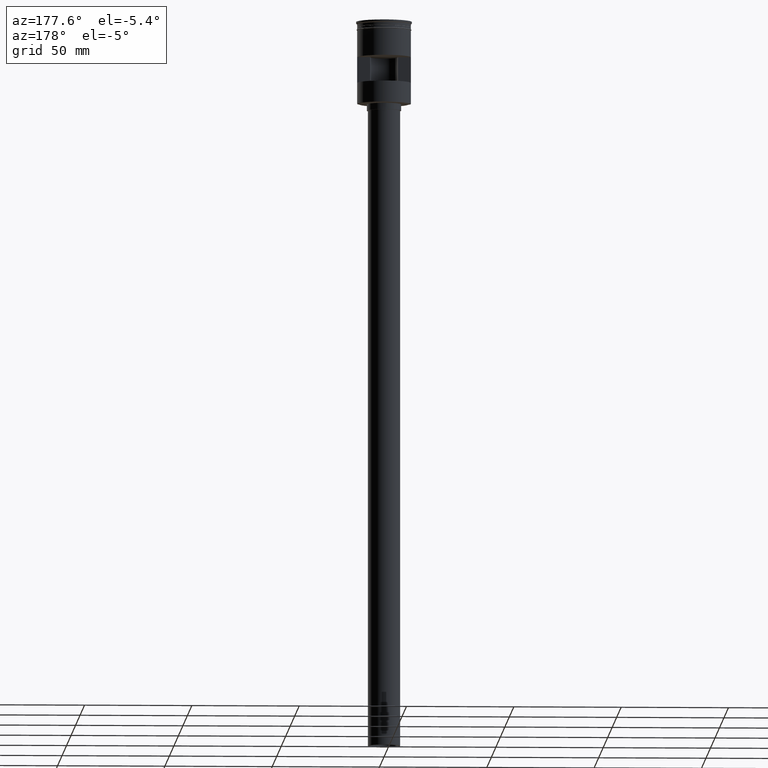
[diagram: clean part render]
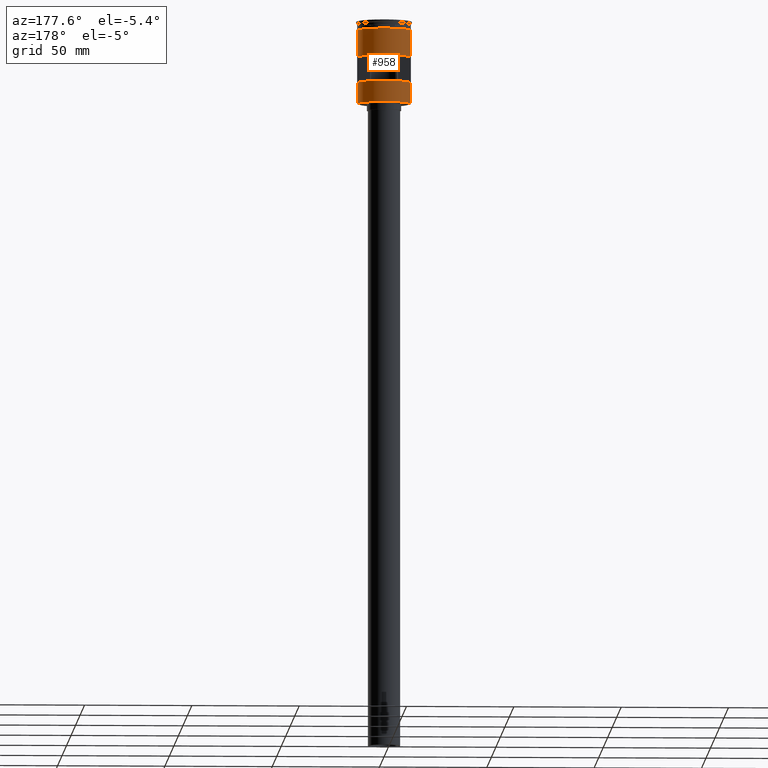
[diagram: same view with one face highlighted and labeled with its STEP entity id]
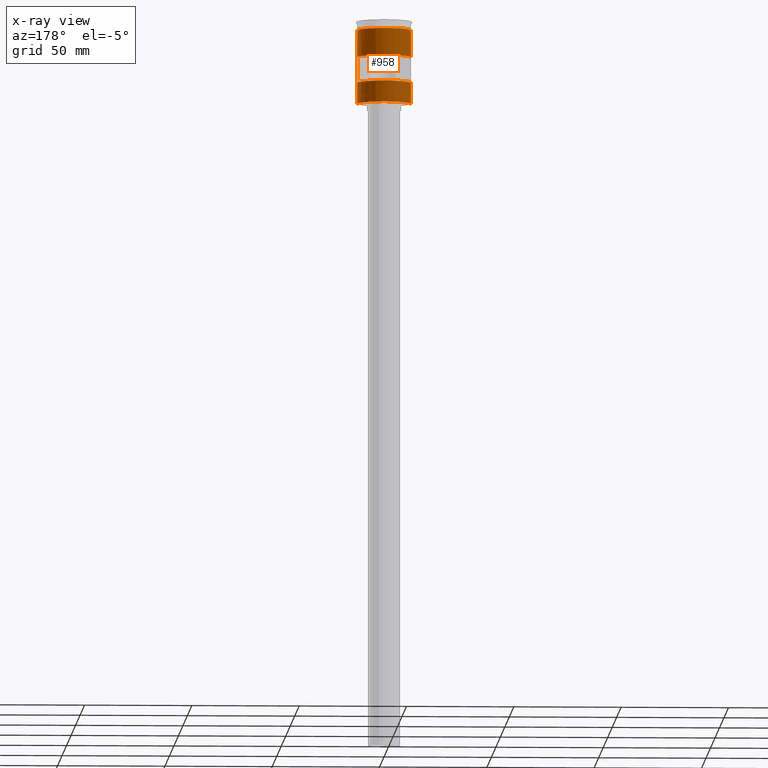
[diagram: x-ray of the same camera — body ghosted, the highlighted face saturated]
A machine part, auxiliary view. The second image highlights one B-rep face of the part: STEP entity #958.
The next image is the same camera in x-ray: the body ghosted, the highlighted face saturated — about 0% of this face is hidden behind the body in this view.
In plain terms, the highlighted cylindrical surface (edge-blend (fillet) strip) has radius 12.5 mm, axis along (-0, -0, 1).
Its self-contained STEP definition (entity closure, byte-faithful):
#5 = CARTESIAN_POINT ( 'NONE',  ( 0.000000000000000000, 0.000000000000000000, -38.30000000000001847 ) ) ;
#10 = VERTEX_POINT ( 'NONE', #1022 ) ;
#49 = DIRECTION ( 'NONE',  ( -0.000000000000000000, -0.000000000000000000, 1.000000000000000000 ) ) ;
#98 = CARTESIAN_POINT ( 'NONE',  ( -12.49999999999999289, 0.000000000000000000, -33.29999999999996874 ) ) ;
#110 = CARTESIAN_POINT ( 'NONE',  ( 12.48559169603106689, 0.6000000000000003109, -28.49999999999999645 ) ) ;
#112 = CARTESIAN_POINT ( 'NONE',  ( -12.48559169603106689, 0.6000000000000003109, -16.50000000000000000 ) ) ;
#115 = CARTESIAN_POINT ( 'NONE',  ( -12.49999999999999289, 0.000000000000000000, -38.30000000000001847 ) ) ;
#125 = AXIS2_PLACEMENT_3D ( 'NONE', #1603, #1222, #1474 ) ;
#128 = ORIENTED_EDGE ( 'NONE', *, *, #1198, .F. ) ;
#133 = EDGE_CURVE ( 'NONE', #253, #618, #222, .T. ) ;
#143 = EDGE_CURVE ( 'NONE', #412, #1572, #1188, .T. ) ;
#173 = FACE_BOUND ( 'NONE', #1487, .T. ) ;
#183 = LINE ( 'NONE', #1394, #655 ) ;
#198 = VERTEX_POINT ( 'NONE', #110 ) ;
#213 = EDGE_CURVE ( 'NONE', #618, #1498, #1232, .T. ) ;
#222 = LINE ( 'NONE', #601, #1031 ) ;
#253 = VERTEX_POINT ( 'NONE', #1069 ) ;
#303 = CIRCLE ( 'NONE', #794, 12.49999999999999645 ) ;
#315 = CARTESIAN_POINT ( 'NONE',  ( 0.000000000000000000, 0.000000000000000000, 0.000000000000000000 ) ) ;
#388 = ORIENTED_EDGE ( 'NONE', *, *, #714, .T. ) ;
#393 = EDGE_CURVE ( 'NONE', #198, #409, #1360, .T. ) ;
#397 = CARTESIAN_POINT ( 'NONE',  ( 12.49999999999999645, 0.000000000000000000, 0.000000000000000000 ) ) ;
#402 = DIRECTION ( 'NONE',  ( -1.000000000000000000, 0.000000000000000000, 0.000000000000000000 ) ) ;
#409 = VERTEX_POINT ( 'NONE', #496 ) ;
#412 = VERTEX_POINT ( 'NONE', #115 ) ;
#460 = CIRCLE ( 'NONE', #1065, 12.49999999999999822 ) ;
#483 = VERTEX_POINT ( 'NONE', #861 ) ;
#496 = CARTESIAN_POINT ( 'NONE',  ( -12.48559169603106689, 0.6000000000000003109, -28.49999999999999645 ) ) ;
#503 = AXIS2_PLACEMENT_3D ( 'NONE', #5, #525, #402 ) ;
#525 = DIRECTION ( 'NONE',  ( 0.000000000000000000, 0.000000000000000000, 1.000000000000000000 ) ) ;
#538 = EDGE_CURVE ( 'NONE', #253, #412, #854, .T. ) ;
#545 = DIRECTION ( 'NONE',  ( -0.000000000000000000, -0.000000000000000000, 1.000000000000000000 ) ) ;
#548 = CARTESIAN_POINT ( 'NONE',  ( -12.48559169603106689, 0.6000000000000003109, 0.000000000000000000 ) ) ;
#555 = DIRECTION ( 'NONE',  ( 1.000000000000000000, 0.000000000000000000, 0.000000000000000000 ) ) ;
#597 = CARTESIAN_POINT ( 'NONE',  ( 0.000000000000000000, 0.000000000000000000, -16.50000000000000000 ) ) ;
#601 = CARTESIAN_POINT ( 'NONE',  ( 12.49999999999999289, 1.530808498934190732E-15, -38.50000000000000000 ) ) ;
#618 = VERTEX_POINT ( 'NONE', #910 ) ;
#622 = DIRECTION ( 'NONE',  ( -0.000000000000000000, 0.000000000000000000, -1.000000000000000000 ) ) ;
#655 = VECTOR ( 'NONE', #1055, 1000.000000000000000 ) ;
#673 = FACE_OUTER_BOUND ( 'NONE', #755, .T. ) ;
#684 = LINE ( 'NONE', #548, #1332 ) ;
#701 = CARTESIAN_POINT ( 'NONE',  ( 0.000000000000000000, 0.000000000000000000, -3.999999999999996447 ) ) ;
#714 = EDGE_CURVE ( 'NONE', #1572, #10, #183, .T. ) ;
#755 = EDGE_LOOP ( 'NONE', ( #928, #388, #128, #1073, #933, #1268 ) ) ;
#769 = VECTOR ( 'NONE', #1561, 1000.000000000000000 ) ;
#790 = ORIENTED_EDGE ( 'NONE', *, *, #1452, .F. ) ;
#794 = AXIS2_PLACEMENT_3D ( 'NONE', #597, #622, #1323 ) ;
#801 = DIRECTION ( 'NONE',  ( -0.000000000000000000, -0.000000000000000000, 1.000000000000000000 ) ) ;
#803 = LINE ( 'NONE', #1040, #1113 ) ;
#823 = CARTESIAN_POINT ( 'NONE',  ( 12.49999999999999822, 0.000000000000000000, -3.999999999999996447 ) ) ;
#854 = CIRCLE ( 'NONE', #503, 12.49999999999999645 ) ;
#857 = VERTEX_POINT ( 'NONE', #112 ) ;
#861 = CARTESIAN_POINT ( 'NONE',  ( 12.48559169603106689, 0.6000000000000003109, -16.50000000000000000 ) ) ;
#876 = ORIENTED_EDGE ( 'NONE', *, *, #1501, .F. ) ;
#910 = CARTESIAN_POINT ( 'NONE',  ( 12.49999999999999645, 1.530808498934191127E-15, -33.29999999999996874 ) ) ;
#928 = ORIENTED_EDGE ( 'NONE', *, *, #143, .T. ) ;
#933 = ORIENTED_EDGE ( 'NONE', *, *, #133, .F. ) ;
#957 = CARTESIAN_POINT ( 'NONE',  ( -12.49999999999999289, 0.000000000000000000, -38.50000000000000000 ) ) ;
#958 = ADVANCED_FACE ( 'NONE', ( #173, #673 ), #1158, .T. ) ;
#966 = EDGE_CURVE ( 'NONE', #483, #198, #803, .T. ) ;
#1022 = CARTESIAN_POINT ( 'NONE',  ( -12.50000000000000000, 1.530808498934191521E-15, -3.999999999999996447 ) ) ;
#1031 = VECTOR ( 'NONE', #1554, 1000.000000000000000 ) ;
#1038 = DIRECTION ( 'NONE',  ( 1.000000000000000000, 0.000000000000000000, 0.000000000000000000 ) ) ;
#1040 = CARTESIAN_POINT ( 'NONE',  ( 12.48559169603106689, 0.6000000000000003109, 0.000000000000000000 ) ) ;
#1055 = DIRECTION ( 'NONE',  ( -0.000000000000000000, -0.000000000000000000, 1.000000000000000000 ) ) ;
#1065 = AXIS2_PLACEMENT_3D ( 'NONE', #701, #801, #1038 ) ;
#1069 = CARTESIAN_POINT ( 'NONE',  ( 12.49999999999999289, 1.530808498934190732E-15, -38.30000000000001847 ) ) ;
#1073 = ORIENTED_EDGE ( 'NONE', *, *, #213, .F. ) ;
#1113 = VECTOR ( 'NONE', #1291, 1000.000000000000000 ) ;
#1158 = CYLINDRICAL_SURFACE ( 'NONE', #1290, 12.49999999999999645 ) ;
#1170 = DIRECTION ( 'NONE',  ( -0.000000000000000000, -0.000000000000000000, 1.000000000000000000 ) ) ;
#1188 = LINE ( 'NONE', #957, #769 ) ;
#1198 = EDGE_CURVE ( 'NONE', #1498, #10, #460, .T. ) ;
#1222 = DIRECTION ( 'NONE',  ( 0.000000000000000000, 0.000000000000000000, 1.000000000000000000 ) ) ;
#1232 = LINE ( 'NONE', #397, #1596 ) ;
#1268 = ORIENTED_EDGE ( 'NONE', *, *, #538, .T. ) ;
#1290 = AXIS2_PLACEMENT_3D ( 'NONE', #315, #49, #555 ) ;
#1291 = DIRECTION ( 'NONE',  ( 0.000000000000000000, 0.000000000000000000, -1.000000000000000000 ) ) ;
#1319 = ORIENTED_EDGE ( 'NONE', *, *, #966, .F. ) ;
#1323 = DIRECTION ( 'NONE',  ( 1.000000000000000000, 0.000000000000000000, 0.000000000000000000 ) ) ;
#1332 = VECTOR ( 'NONE', #1170, 1000.000000000000000 ) ;
#1342 = ORIENTED_EDGE ( 'NONE', *, *, #393, .F. ) ;
#1360 = CIRCLE ( 'NONE', #125, 12.49999999999999645 ) ;
#1394 = CARTESIAN_POINT ( 'NONE',  ( -12.49999999999999645, 1.530808498934191127E-15, 0.000000000000000000 ) ) ;
#1452 = EDGE_CURVE ( 'NONE', #409, #857, #684, .T. ) ;
#1474 = DIRECTION ( 'NONE',  ( -1.000000000000000000, 0.000000000000000000, 0.000000000000000000 ) ) ;
#1487 = EDGE_LOOP ( 'NONE', ( #1319, #876, #790, #1342 ) ) ;
#1498 = VERTEX_POINT ( 'NONE', #823 ) ;
#1501 = EDGE_CURVE ( 'NONE', #857, #483, #303, .T. ) ;
#1554 = DIRECTION ( 'NONE',  ( -0.000000000000000000, -0.000000000000000000, 1.000000000000000000 ) ) ;
#1561 = DIRECTION ( 'NONE',  ( -0.000000000000000000, -0.000000000000000000, 1.000000000000000000 ) ) ;
#1572 = VERTEX_POINT ( 'NONE', #98 ) ;
#1596 = VECTOR ( 'NONE', #545, 1000.000000000000000 ) ;
#1603 = CARTESIAN_POINT ( 'NONE',  ( 0.000000000000000000, 0.000000000000000000, -28.49999999999999645 ) ) ;